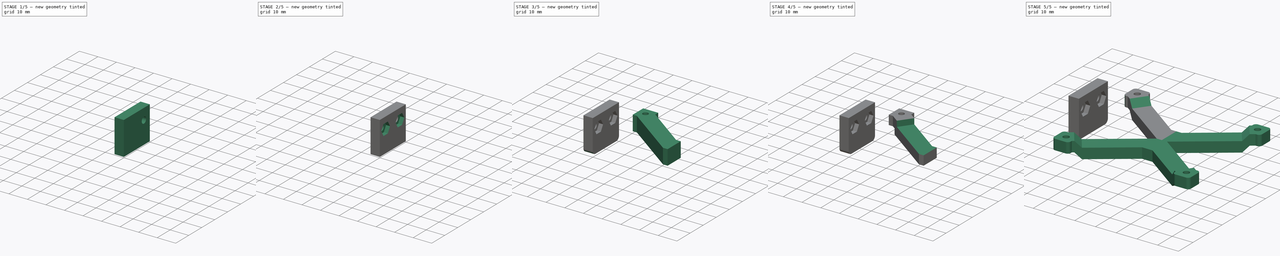
[diagram: build sequence overview — one tinted view per stage of 5, left to right]
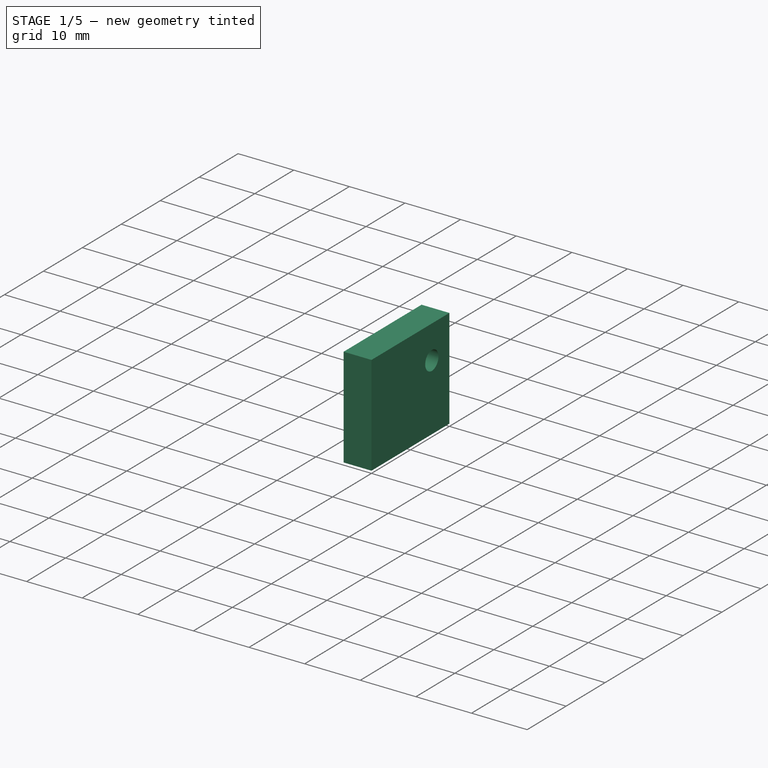
[diagram: stage 1 of 5 — iso view after this stage's code; geometry added in this stage tinted green]
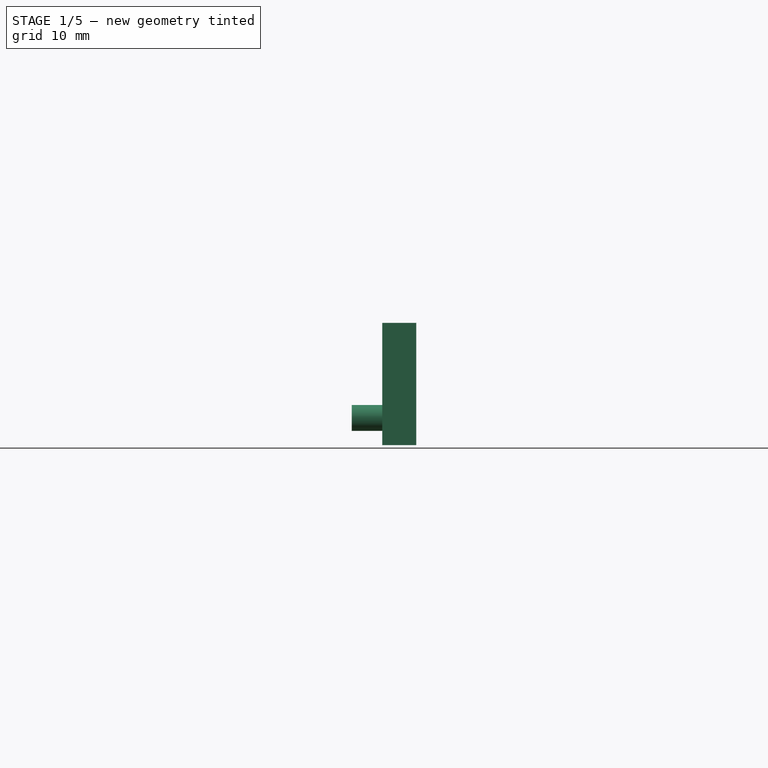
[diagram: stage 1 of 5 — front view after this stage's code; geometry added in this stage tinted green]
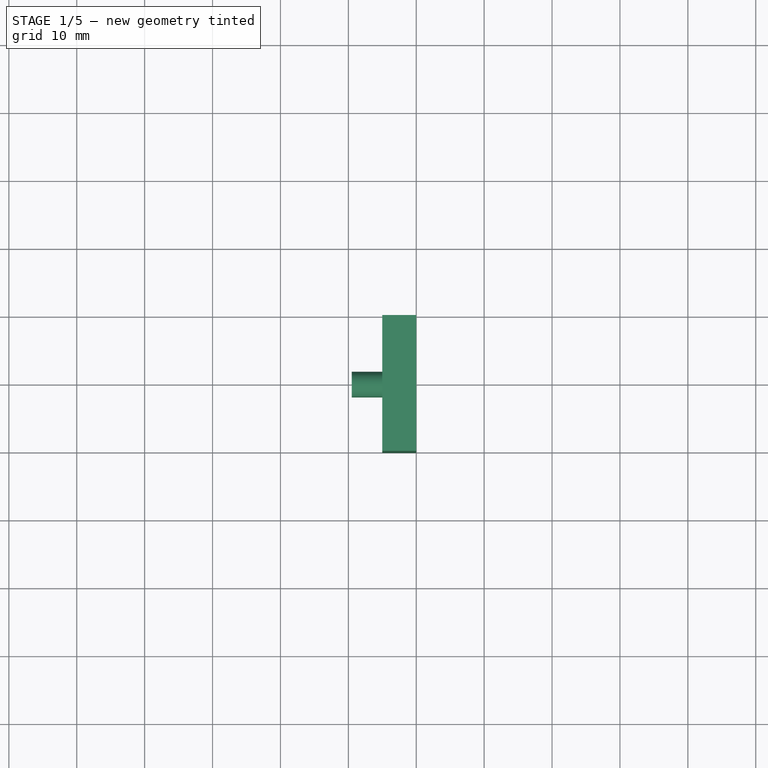
[diagram: stage 1 of 5 — top view after this stage's code; geometry added in this stage tinted green]
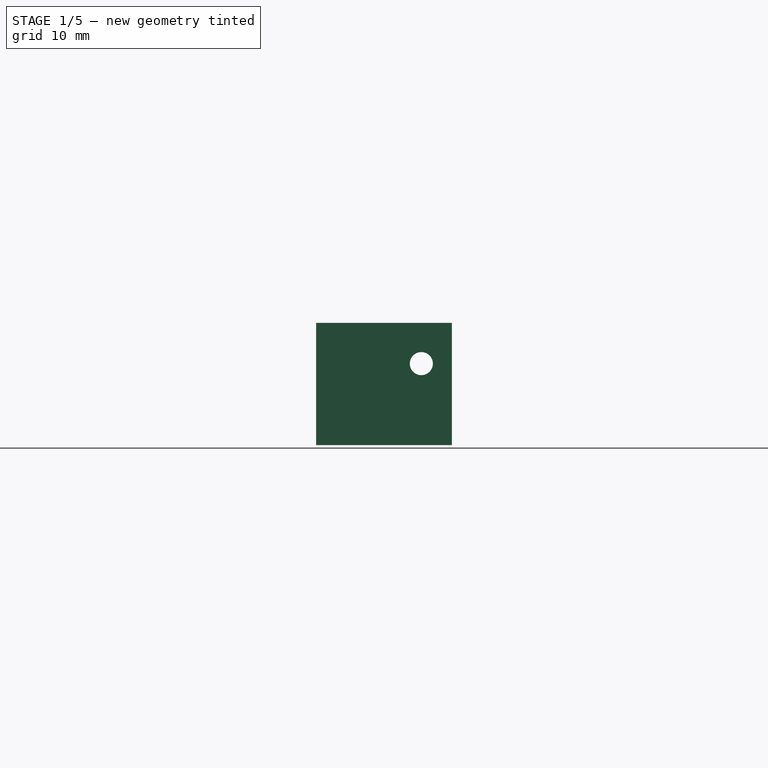
[diagram: stage 1 of 5 — right view after this stage's code; geometry added in this stage tinted green]
FCSTD DOCUMENT  (FreeCAD 0.19R24276 (Git))
Label: hat_holder_bot
License: All rights reserved
LicenseURL: http://en.wikipedia.org/wiki/All_rights_reserved
objects: Sketcher::SketchObject×9, PartDesign::Pocket×4, PartDesign::Pad×3, PartDesign::Mirrored×3, PartDesign::Hole×2, PartDesign::Chamfer×2, PartDesign::Fillet×2, PartDesign::Body×2, PartDesign::MultiTransform×1
note: 41 computed .brp shape members not serialized (recipe doc carries the construction recipe); baked Part::Feature solids carry a one-line shape summary decoded from their .brp

FEATURE [Sketcher::SketchObject] Sketch  label="conn_base_sk"
  FullyConstrained = true
  MapMode = 5
  Placement = pos=(0,0,0) rot=(0.57735,0.57735,0.57735;2.0944rad)
  Support = -> [YZ_Plane]
  sketch-geometry (4):
    g0: LineSegment StartX=-10 StartY=0 StartZ=0 EndX=10 EndY=0 EndZ=0
    g1: LineSegment StartX=10 StartY=0 StartZ=0 EndX=10 EndY=18 EndZ=0
    g2: LineSegment StartX=10 StartY=18 StartZ=0 EndX=-10 EndY=18 EndZ=0
    g3: LineSegment StartX=-10 StartY=18 StartZ=0 EndX=-10 EndY=0 EndZ=0
  constraints (11):
    c: Coincident(g0,g1)
    c: Coincident(g1,g2)
    c: Coincident(g2,g3)
    c: Coincident(g3,g0)
    c: Horizontal(g2)
    c: Vertical(g1)
    c: Vertical(g3)
    c: PointOnObject(g0,g-1)
    c: Symmetric(g0,g0,g-2)
    c: Distance(g1) = 18
    c: Distance(g2) = 20
FEATURE [PartDesign::Pad] Pad  label="conn_base"
  Direction = (1,1,1)
  Length = 5
  Length2 = 100
  Placement = pos=(0,0,0) rot=(0.57735,0.57735,0.57735;2.0944rad)
  Profile = -> Sketch
  Reversed = true
  Type = 0
FEATURE [Sketcher::SketchObject] Sketch001  label="dowel_pin_sk"
  FullyConstrained = true
  MapMode = 5
  Placement = pos=(-5,1.1e-15,-1.1e-15) rot=(0.57735,0.57735,-0.57735;4.18879rad)
  Support = -> [Pad]
  sketch-geometry (1):
    g0: Circle CenterX=0 CenterY=-4 CenterZ=0 NormalX=0 NormalY=0 NormalZ=1 AngleXU=0 Radius=1.9
  constraints (3):
    c: PointOnObject(g0,g-2)
    c: DistanceY(g0,g-1) = 4
    c: Radius(g0) = 1.9
FEATURE [PartDesign::Pad] Pad001  label="dowel_pin"
  BaseFeature = -> Pad
  Direction = (1,1,1)
  Length = 4.5
  Length2 = 100
  Placement = pos=(0,0,0) rot=(0.57735,0.57735,0.57735;2.0944rad)
  Profile = -> Sketch001
  Type = 0
FEATURE [Sketcher::SketchObject] Sketch002  label="M3_hole_sk"
  ExternalGeometry = -> [Pad001]
  FullyConstrained = true
  MapMode = 5
  Placement = pos=(-5,1.1e-15,-1.1e-15) rot=(0.57735,0.57735,-0.57735;4.18879rad)
  Support = -> [Pad001]
  sketch-geometry (1):
    g0: Circle CenterX=5.5 CenterY=-12 CenterZ=0 NormalX=0 NormalY=0 NormalZ=1 AngleXU=0 Radius=1
  constraints (3):
    c: DistanceY(g0,g-3) = 8
    c: DistanceX(g-1,g0) = 5.5
    c: Radius(g0) = 1
FEATURE [PartDesign::Hole] Hole  label="M3_hole"
  BaseFeature = -> Pad001
  Depth = 25
  DepthType = 1
  Diameter = 3.4
  DrillForDepth = false
  DrillPoint = 1
  DrillPointAngle = 118
  HoleCutCountersinkAngle = 90
  HoleCutCustomValues = false
  HoleCutDepth = 0
  HoleCutDiameter = 6.1
  HoleCutType = 0
  ModelActualThread = false
  Placement = pos=(0,0,0) rot=(0.57735,0.57735,0.57735;2.0944rad)
  Profile = -> Sketch002
  Tapered = false
  TaperedAngle = 90
  ThreadAngle = 0
  ThreadClass = 0
  ThreadCutOffInner = 0
  ThreadCutOffOuter = 0
  ThreadDirection = 0
  ThreadFit = 0
  ThreadPitch = 0
  ThreadSize = 9
  ThreadType = 1
  Threaded = false
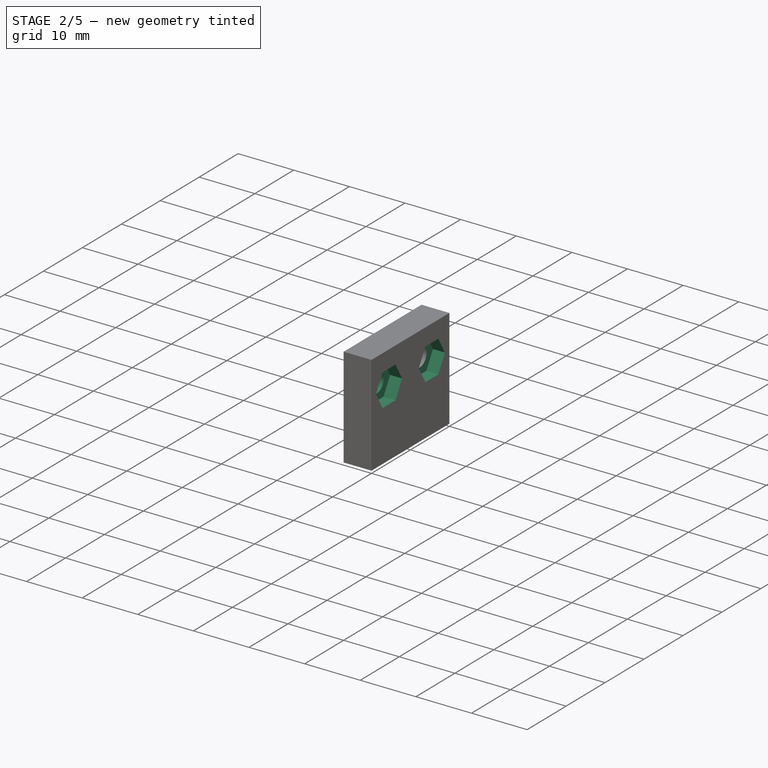
[diagram: stage 2 of 5 — iso view after this stage's code; geometry added in this stage tinted green]
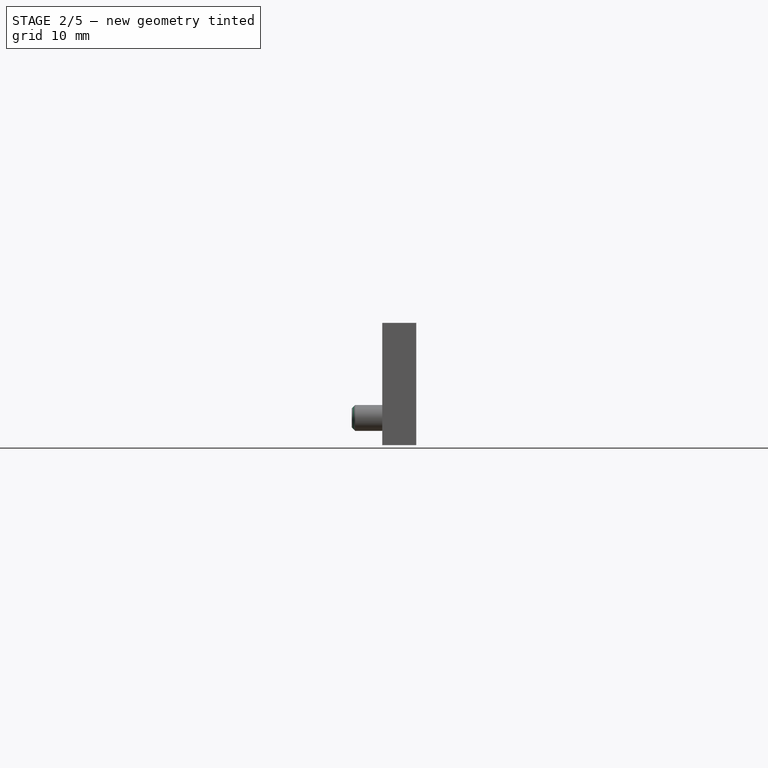
[diagram: stage 2 of 5 — front view after this stage's code; geometry added in this stage tinted green]
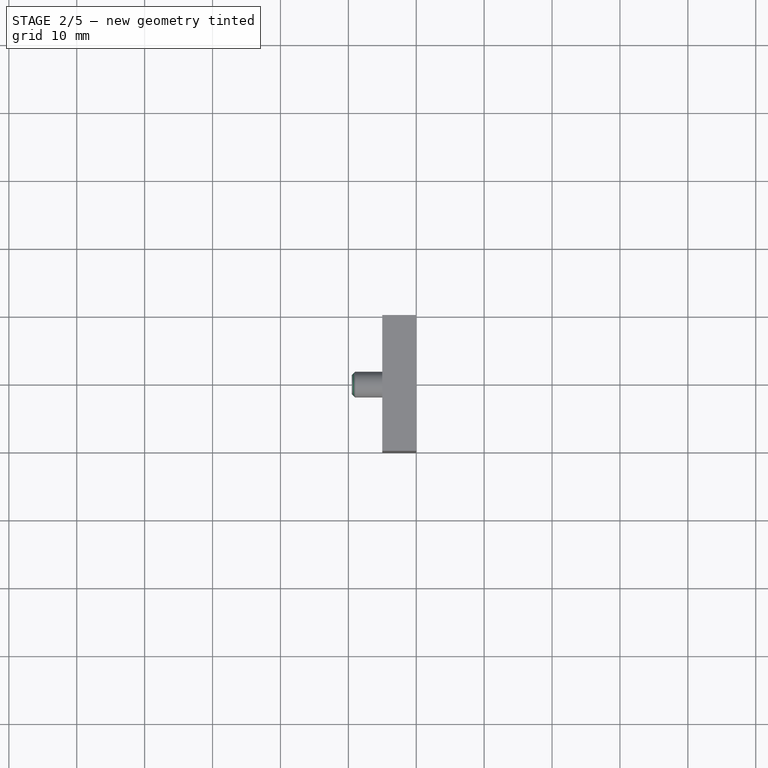
[diagram: stage 2 of 5 — top view after this stage's code; geometry added in this stage tinted green]
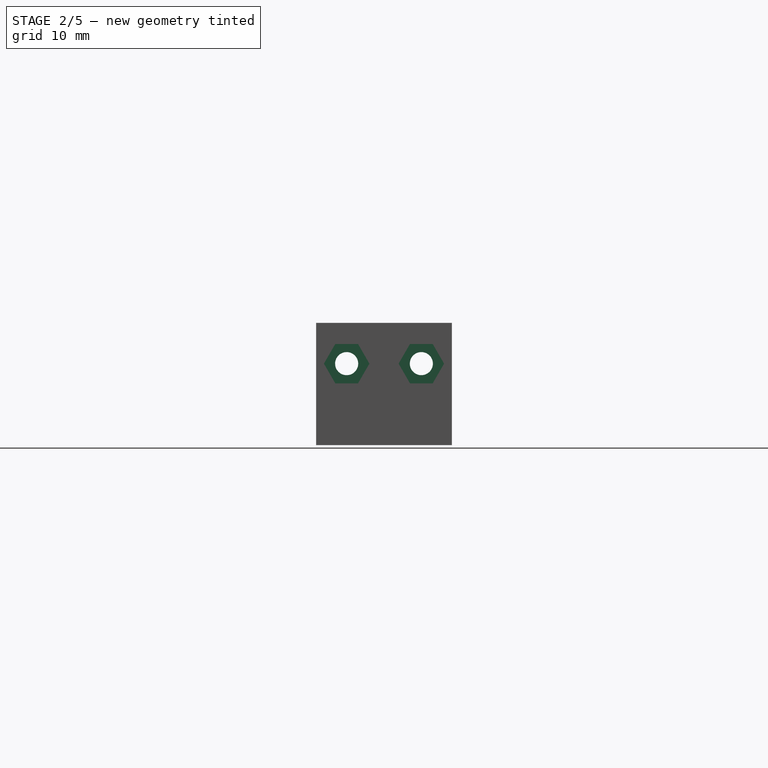
[diagram: stage 2 of 5 — right view after this stage's code; geometry added in this stage tinted green]
FEATURE [Sketcher::SketchObject] Sketch003  label="M3_hex_sk"
  ExternalGeometry = -> [Hole]
  FullyConstrained = true
  MapMode = 5
  Placement = pos=(0,0,0) rot=(0.57735,0.57735,0.57735;2.0944rad)
  Support = -> [Hole]
  sketch-geometry (7):
    g0: LineSegment StartX=2.15137 StartY=12 StartZ=0 EndX=3.82568 EndY=9.1 EndZ=0
    g1: LineSegment StartX=3.82568 StartY=9.1 StartZ=0 EndX=7.17432 EndY=9.1 EndZ=0
    g2: LineSegment StartX=7.17432 StartY=9.1 StartZ=0 EndX=8.84863 EndY=12 EndZ=0
    g3: LineSegment StartX=8.84863 StartY=12 StartZ=0 EndX=7.17432 EndY=14.9 EndZ=0
    g4: LineSegment StartX=7.17432 StartY=14.9 StartZ=0 EndX=3.82568 EndY=14.9 EndZ=0
    g5: LineSegment StartX=3.82568 StartY=14.9 StartZ=0 EndX=2.15137 EndY=12 EndZ=0
    g6: Circle CenterX=5.5 CenterY=12 CenterZ=0 NormalX=0 NormalY=0 NormalZ=1 AngleXU=0 Radius=3.34863
  constraints (16):
    c: Coincident(g0,g1)
    c: Coincident(g1,g2)
    c: Coincident(g2,g3)
    c: Coincident(g3,g4)
    c: Coincident(g4,g5)
    c: Coincident(g5,g0)
    c: Equal(g0, g1-g5) x5
    c: PointOnObject(g0,g6)
    c: PointOnObject(g1,g6)
    c: PointOnObject(g2,g6)
    c: PointOnObject(g3,g6)
    c: PointOnObject(g4,g6)
    c: PointOnObject(g5,g6)
    c: Coincident(g6,g-3)
    c: Horizontal(g0,g2)
    c: Distance(g4,g0) = 5.8
FEATURE [PartDesign::Pocket] Pocket  label="M3_hex"
  BaseFeature = -> Hole
  Length = 2.15
  Length2 = 100
  Placement = pos=(0,0,0) rot=(0.57735,0.57735,0.57735;2.0944rad)
  Profile = -> Sketch003
  Type = 0
FEATURE [PartDesign::Mirrored] Mirrored  label="dual_M3"
  BaseFeature = -> Pocket
  MirrorPlane = -> XZ_Plane
  Originals = -> [Hole,Pocket]
  Placement = pos=(0,0,0) rot=(0.57735,0.57735,0.57735;2.0944rad)
FEATURE [PartDesign::Chamfer] Chamfer  label="dowel_pin_chamfer"
  Angle = 45
  Base = -> Mirrored [Face24]
  BaseFeature = -> Mirrored
  ChamferType = 0
  FlipDirection = false
  Placement = pos=(0,0,0) rot=(0.57735,0.57735,0.57735;2.0944rad)
  Size = 0.5
  Size2 = 1
  SupportTransform = false
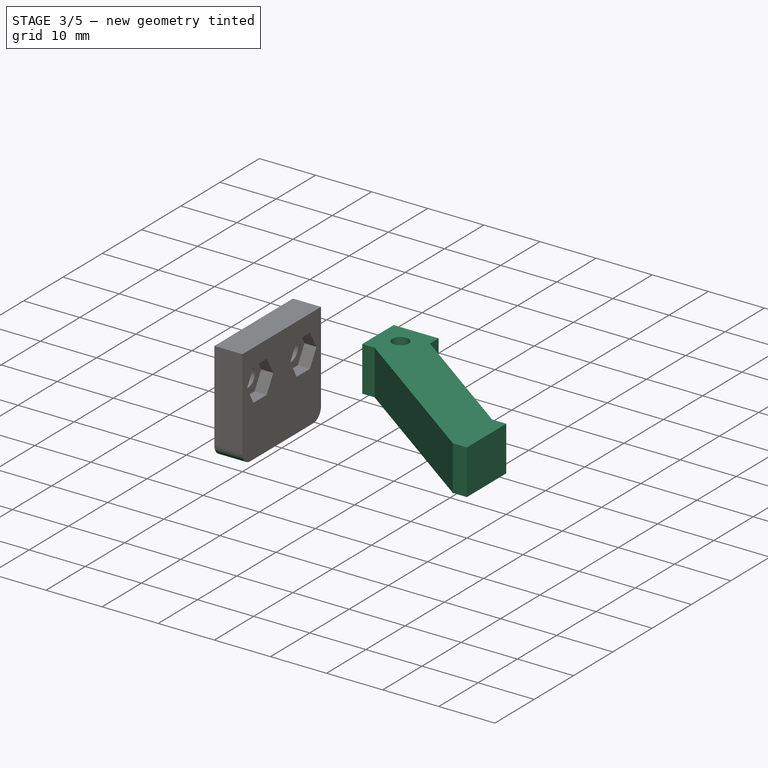
[diagram: stage 3 of 5 — iso view after this stage's code; geometry added in this stage tinted green]
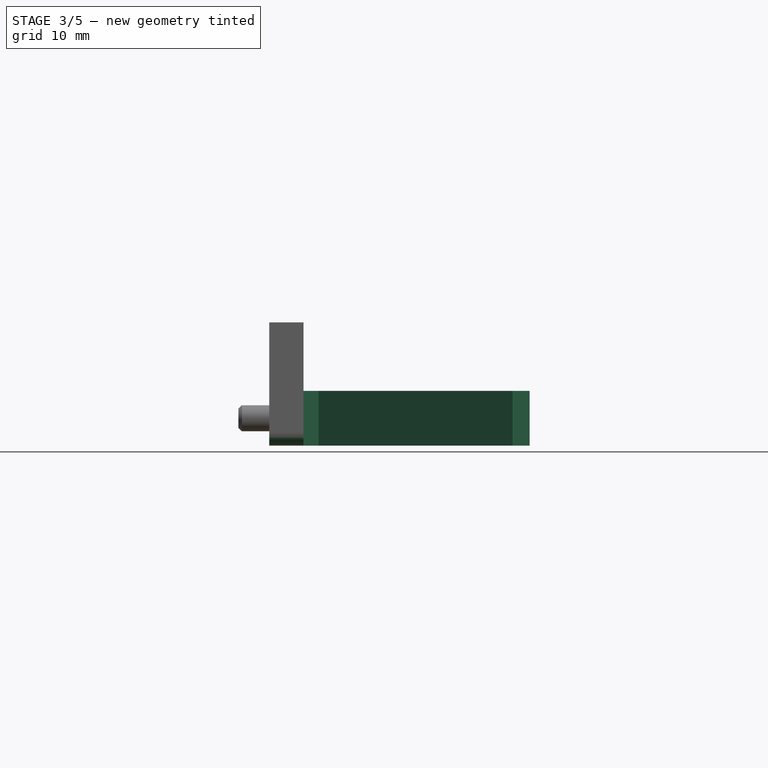
[diagram: stage 3 of 5 — front view after this stage's code; geometry added in this stage tinted green]
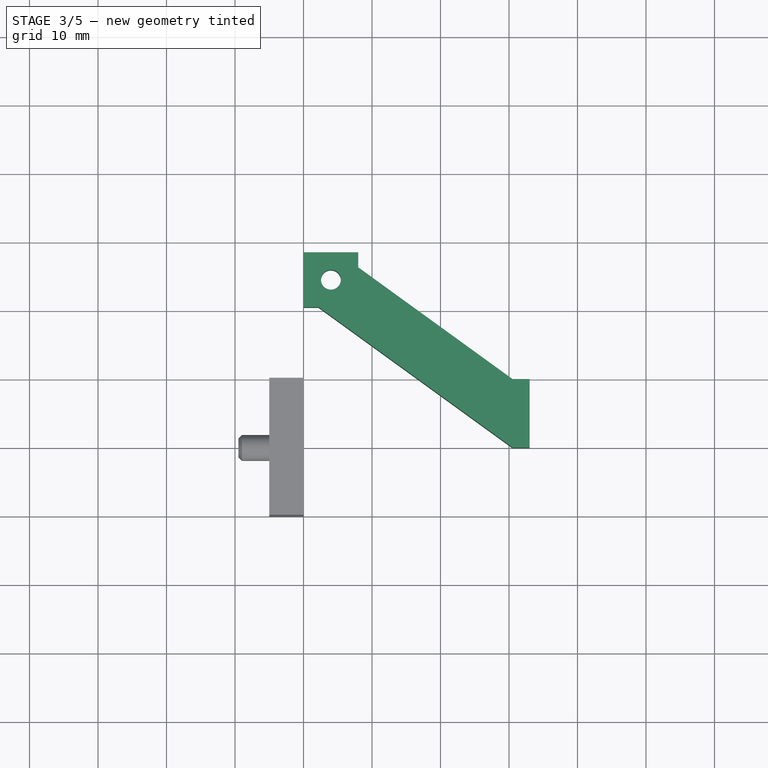
[diagram: stage 3 of 5 — top view after this stage's code; geometry added in this stage tinted green]
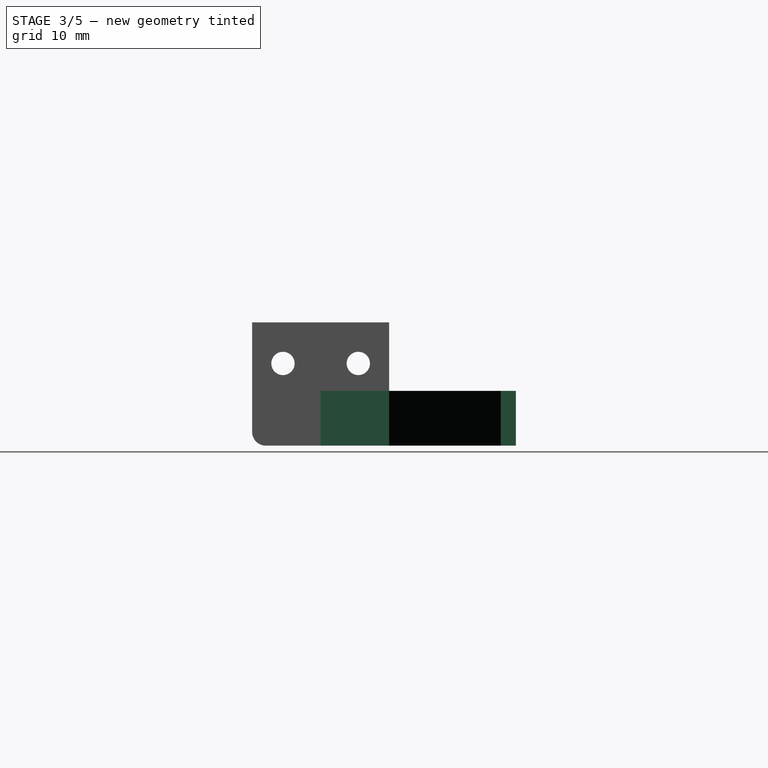
[diagram: stage 3 of 5 — right view after this stage's code; geometry added in this stage tinted green]
FEATURE [Sketcher::SketchObject] Sketch004  label="quad_holder_sk"
  FullyConstrained = true
  MapMode = 5
  Support = -> [XY_Plane001]
  sketch-geometry (9):
    g0: LineSegment StartX=0 StartY=28.5 StartZ=0 EndX=8 EndY=28.5 EndZ=0
    g1: LineSegment StartX=30.5 StartY=10 StartZ=0 EndX=33 EndY=10 EndZ=0
    g2: LineSegment StartX=33 StartY=0 StartZ=0 EndX=30.5 EndY=0 EndZ=0
    g3: LineSegment StartX=0 StartY=28.5 StartZ=0 EndX=0 EndY=20.5 EndZ=0
    g4: LineSegment StartX=8 StartY=28.5 StartZ=0 EndX=8 EndY=26.2991 EndZ=0
    g5: LineSegment StartX=0 StartY=20.5 StartZ=0 EndX=2.2009 EndY=20.5 EndZ=0
    g6: LineSegment StartX=8 StartY=26.2991 StartZ=0 EndX=30.5 EndY=10 EndZ=0
    g7: LineSegment StartX=2.2009 StartY=20.5 StartZ=0 EndX=30.5 EndY=0 EndZ=0
    g8: LineSegment StartX=33 StartY=10 StartZ=0 EndX=33 EndY=0 EndZ=0
  constraints (27):
    c: PointOnObject(g0,g-2)
    c: Horizontal(g0)
    c: Horizontal(g1)
    c: PointOnObject(g2,g-1)
    c: Distance(g0) = 8
    c: Distance(g1) = 2.5
    c: Coincident(g3,g0)
    c: PointOnObject(g3,g-2)
    c: Equal(g3,g0)
    c: PointOnObject(g2,g-1)
    c: Coincident(g4,g0)
    c: Vertical(g4)
    c: Coincident(g5,g3)
    c: Horizontal(g5)
    c: Coincident(g6,g4)
    c: Coincident(g6,g1)
    c: Coincident(g7,g5)
    c: Coincident(g7,g2)
    c: Parallel(g7,g6)
    c: Equal(g4,g5)
    c: Coincident(g8,g1)
    c: Coincident(g8,g2)
    c: Vertical(g8)
    c: Vertical(g1,g2)
    c: Distance(g8) = 10
    c: DistanceY(g-1,g0) = 28.5
    c: DistanceX(g-1,g2) = 33
FEATURE [PartDesign::Pad] Pad002  label="quad_holder"
  Direction = (1,1,1)
  Length = 8
  Length2 = 100
  Profile = -> Sketch004
  Type = 0
FEATURE [Sketcher::SketchObject] Sketch005  label="M2on5_hole_sk"
  FullyConstrained = true
  MapMode = 5
  Placement = pos=(0,0,8) rot=(0,0,1;0rad)
  Support = -> [Pad002]
  sketch-geometry (1):
    g0: Circle CenterX=4 CenterY=24.5 CenterZ=0 NormalX=0 NormalY=0 NormalZ=1 AngleXU=0 Radius=1
  constraints (3):
    c: DistanceY(g-1,g0) = 24.5
    c: DistanceX(g-1,g0) = 4
    c: Radius(g0) = 1
FEATURE [PartDesign::Hole] Hole001  label="M2on5_hole"
  BaseFeature = -> Pad002
  Depth = 25
  DepthType = 1
  Diameter = 2.9
  DrillForDepth = false
  DrillPoint = 1
  DrillPointAngle = 118
  HoleCutCountersinkAngle = 90
  HoleCutCustomValues = false
  HoleCutDepth = 0
  HoleCutDiameter = 6.1
  HoleCutType = 0
  ModelActualThread = false
  Profile = -> Sketch005
  Tapered = false
  TaperedAngle = 90
  ThreadAngle = 0
  ThreadClass = 0
  ThreadCutOffInner = 0
  ThreadCutOffOuter = 0
  ThreadDirection = 0
  ThreadFit = 0
  ThreadPitch = 0
  ThreadSize = 8
  ThreadType = 1
  Threaded = false
FEATURE [PartDesign::Body] Body001  label="hat_holder"
  Group = -> [Sketch004,Pad002,Sketch005,Hole001,Sketch006,Pocket001,Pocket002,Pocket003,Chamfer001,Fillet,MultiTransform001,Mirrored003,Mirrored004,Sketch007,Sketch008]
  Origin = -> Origin001
  Placement = pos=(-35.5,0,18) rot=(0,0,1;0rad)
  Tip = -> MultiTransform001
FEATURE [PartDesign::Fillet] Fillet001
  Base = -> Chamfer [Edge13,Edge12]
  BaseFeature = -> Chamfer
  Placement = pos=(0,0,0) rot=(0.57735,0.57735,0.57735;2.0944rad)
  Radius = 2
  SupportTransform = false
FEATURE [PartDesign::Body] Body  label="branch_connector"
  Group = -> [Sketch,Pad,Sketch001,Pad001,Sketch002,Hole,Sketch003,Pocket,Mirrored,Chamfer,Fillet001]
  Origin = -> Origin
  Tip = -> Fillet001
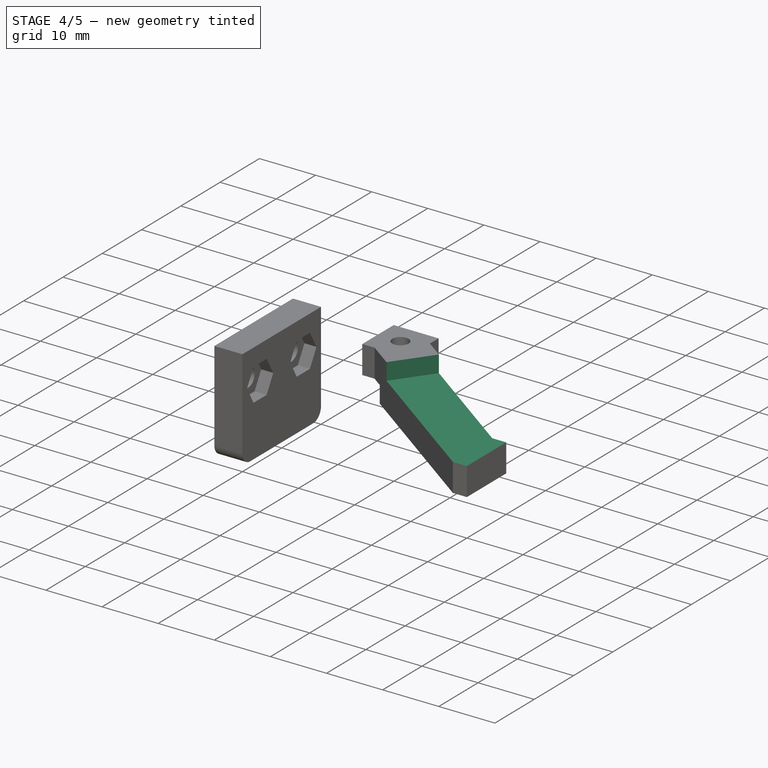
[diagram: stage 4 of 5 — iso view after this stage's code; geometry added in this stage tinted green]
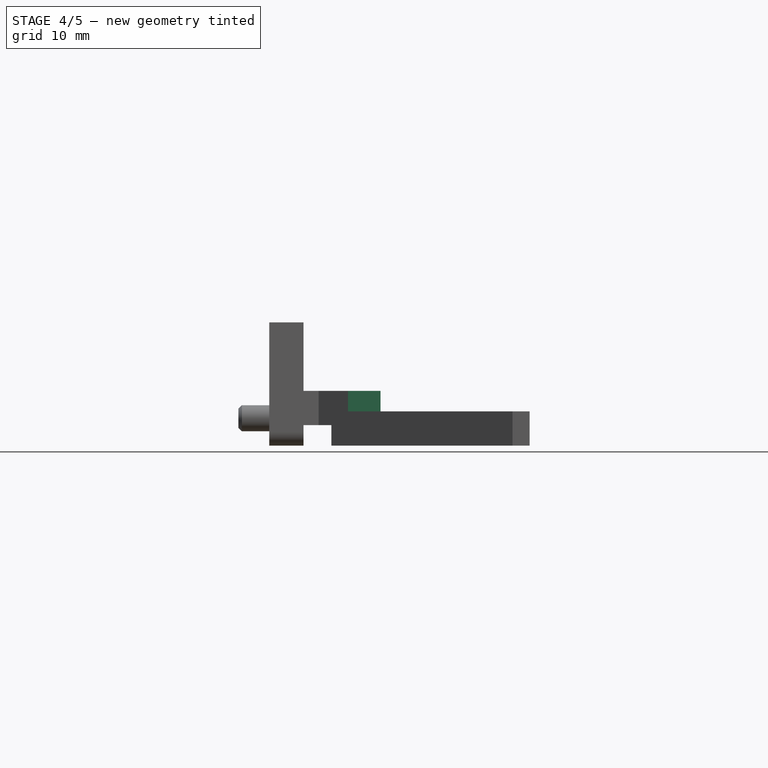
[diagram: stage 4 of 5 — front view after this stage's code; geometry added in this stage tinted green]
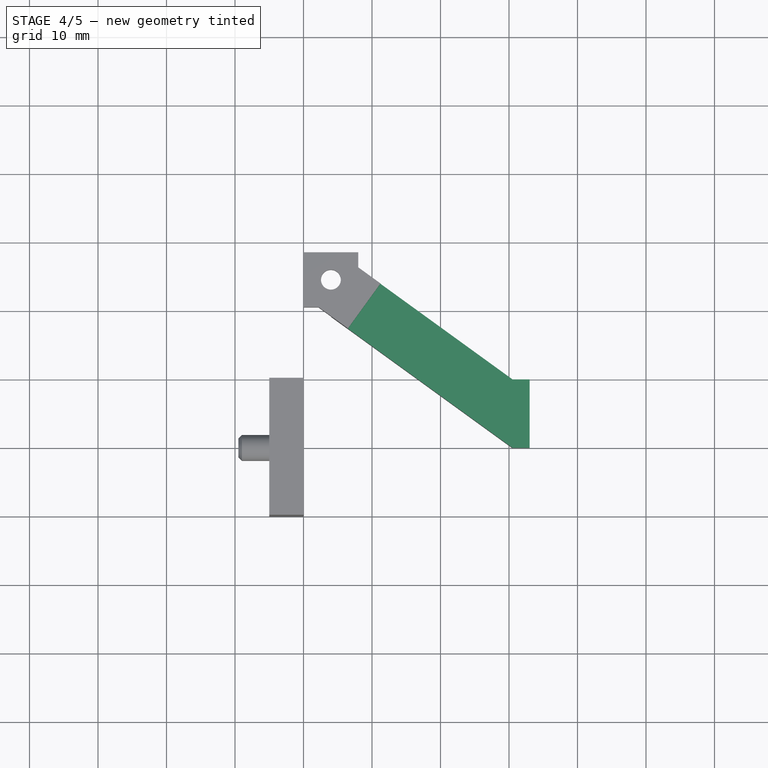
[diagram: stage 4 of 5 — top view after this stage's code; geometry added in this stage tinted green]
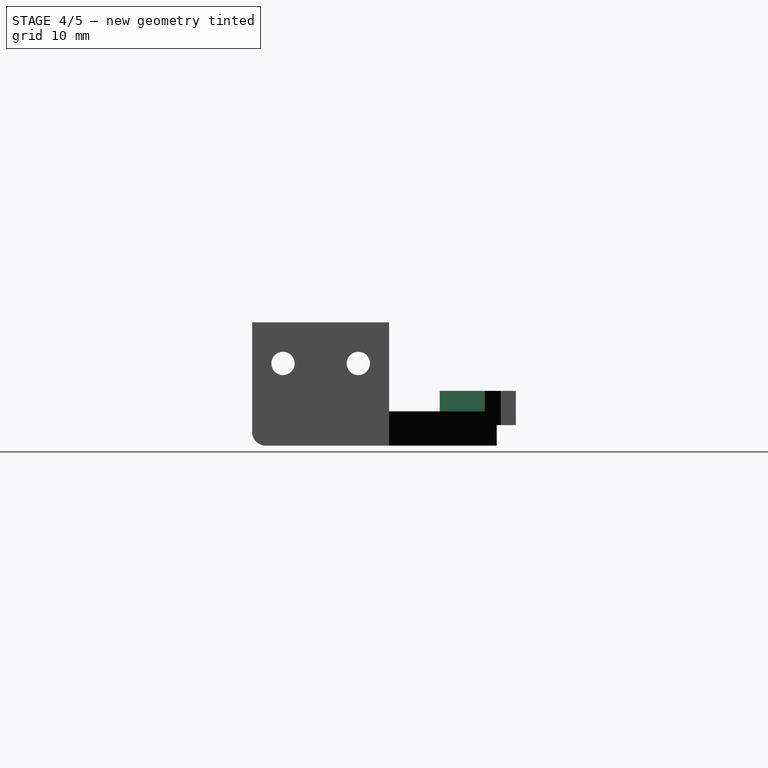
[diagram: stage 4 of 5 — right view after this stage's code; geometry added in this stage tinted green]
FEATURE [Sketcher::SketchObject] Sketch006  label="M2on5_hex_sk"
  ExternalGeometry = -> [Hole001]
  FullyConstrained = true
  MapMode = 5
  Placement = pos=(0,0,0) rot=(1,0,0;3.14159rad)
  Support = -> [Hole001]
  sketch-geometry (7):
    g0: LineSegment StartX=5.51554 StartY=-21.875 StartZ=0 EndX=2.48446 EndY=-21.875 EndZ=0
    g1: LineSegment StartX=2.48446 StartY=-21.875 StartZ=0 EndX=0.968911 EndY=-24.5 EndZ=0
    g2: LineSegment StartX=0.968911 StartY=-24.5 StartZ=0 EndX=2.48446 EndY=-27.125 EndZ=0
    g3: LineSegment StartX=2.48446 StartY=-27.125 StartZ=0 EndX=5.51554 EndY=-27.125 EndZ=0
    g4: LineSegment StartX=5.51554 StartY=-27.125 StartZ=0 EndX=7.03109 EndY=-24.5 EndZ=0
    g5: LineSegment StartX=7.03109 StartY=-24.5 StartZ=0 EndX=5.51554 EndY=-21.875 EndZ=0
    g6: Circle CenterX=4 CenterY=-24.5 CenterZ=0 NormalX=0 NormalY=0 NormalZ=1 AngleXU=0 Radius=3.03109
  constraints (16):
    c: Coincident(g0,g1)
    c: Coincident(g1,g2)
    c: Coincident(g2,g3)
    c: Coincident(g3,g4)
    c: Coincident(g4,g5)
    c: Coincident(g5,g0)
    c: Equal(g0, g1-g5) x5
    c: PointOnObject(g0,g6)
    c: PointOnObject(g1,g6)
    c: PointOnObject(g2,g6)
    c: PointOnObject(g3,g6)
    c: PointOnObject(g4,g6)
    c: PointOnObject(g5,g6)
    c: Horizontal(g4,g1)
    c: DistanceY(g2,g0) = 5.25
    c: Coincident(g6,g-3)
FEATURE [PartDesign::Pocket] Pocket001  label="M2on5_hex"
  BaseFeature = -> Hole001
  Length = 4.75
  Length2 = 100
  Profile = -> Sketch006
  Type = 0
FEATURE [PartDesign::Mirrored] Mirrored003
  MirrorPlane = -> Pocket001 [Face11]
FEATURE [PartDesign::Mirrored] Mirrored004
  MirrorPlane = -> XZ_Plane001
FEATURE [Sketcher::SketchObject] Sketch007  label="end_trimmer_sk"
  ExternalGeometry = -> [Pocket001]
  FullyConstrained = true
  MapMode = 5
  Placement = pos=(0,0,0) rot=(1,0,0;3.14159rad)
  Support = -> [Pocket001]
  sketch-geometry (5):
    g0: LineSegment StartX=0 StartY=-28.5 StartZ=0 EndX=8 EndY=-28.5 EndZ=0
    g1: LineSegment StartX=0 StartY=-20.5 StartZ=0 EndX=0 EndY=-28.5 EndZ=0
    g2: LineSegment StartX=0 StartY=-20.5 StartZ=0 EndX=4.0589 EndY=-19.1541 EndZ=0
    g3: LineSegment StartX=4.0589 StartY=-19.1541 StartZ=0 EndX=8.80984 EndY=-25.7125 EndZ=0
    g4: LineSegment StartX=8.80984 StartY=-25.7125 StartZ=0 EndX=8 EndY=-28.5 EndZ=0
  constraints (12):
    c: Coincident(g1,g0)
    c: Coincident(g0,g-4)
    c: Coincident(g0,g-3)
    c: Coincident(g2,g1)
    c: PointOnObject(g2,g-5)
    c: Coincident(g3,g2)
    c: PointOnObject(g3,g-6)
    c: Coincident(g4,g3)
    c: Coincident(g4,g0)
    c: Perpendicular(g-6,g3)
    c: Distance(g3,g-6) = 1
    c: Coincident(g1,g-4)
FEATURE [PartDesign::Pocket] Pocket002  label="end_trimmer"
  BaseFeature = -> Pocket001
  Length = 3
  Length2 = 100
  Profile = -> Sketch007
  Type = 0
FEATURE [Sketcher::SketchObject] Sketch008  label="center_trimmer_sk"
  ExternalGeometry = -> [Pocket002]
  FullyConstrained = true
  MapMode = 5
  Placement = pos=(0,0,8) rot=(0,0,1;0rad)
  Support = -> [Pocket002]
  sketch-geometry (5):
    g0: LineSegment StartX=33 StartY=0 StartZ=0 EndX=33 EndY=10 EndZ=0
    g1: LineSegment StartX=33 StartY=10 StartZ=0 EndX=11.2394 EndY=23.9525 EndZ=0
    g2: LineSegment StartX=11.2394 StartY=23.9525 StartZ=0 EndX=6.48842 EndY=17.3941 EndZ=0
    g3: LineSegment StartX=6.48842 StartY=17.3941 StartZ=0 EndX=30.5 EndY=0 EndZ=0
    g4: LineSegment StartX=30.5 StartY=0 StartZ=0 EndX=33 EndY=0 EndZ=0
  constraints (12):
    c: Coincident(g0,g-5)
    c: Coincident(g0,g-5)
    c: Coincident(g1,g0)
    c: PointOnObject(g1,g-3)
    c: Coincident(g2,g1)
    c: PointOnObject(g2,g-4)
    c: Coincident(g3,g2)
    c: Coincident(g3,g-4)
    c: Coincident(g4,g3)
    c: Coincident(g4,g0)
    c: Perpendicular(g-4,g2)
    c: Distance(g2,g-3) = 4
FEATURE [PartDesign::Pocket] Pocket003  label="center_trimmer"
  BaseFeature = -> Pocket002
  Length = 3
  Length2 = 100
  Profile = -> Sketch008
  Type = 0
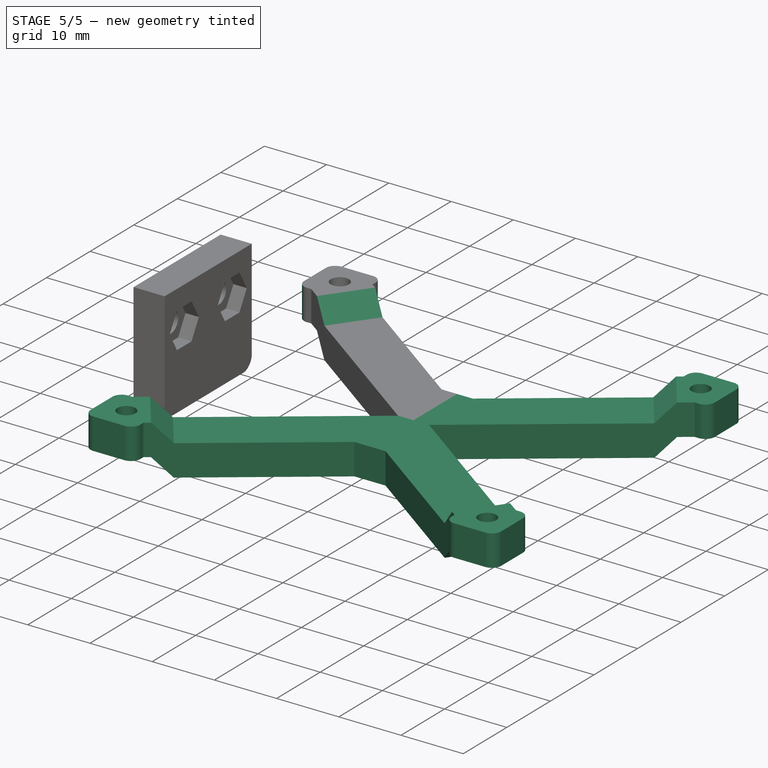
[diagram: stage 5 of 5 — iso view after this stage's code; geometry added in this stage tinted green]
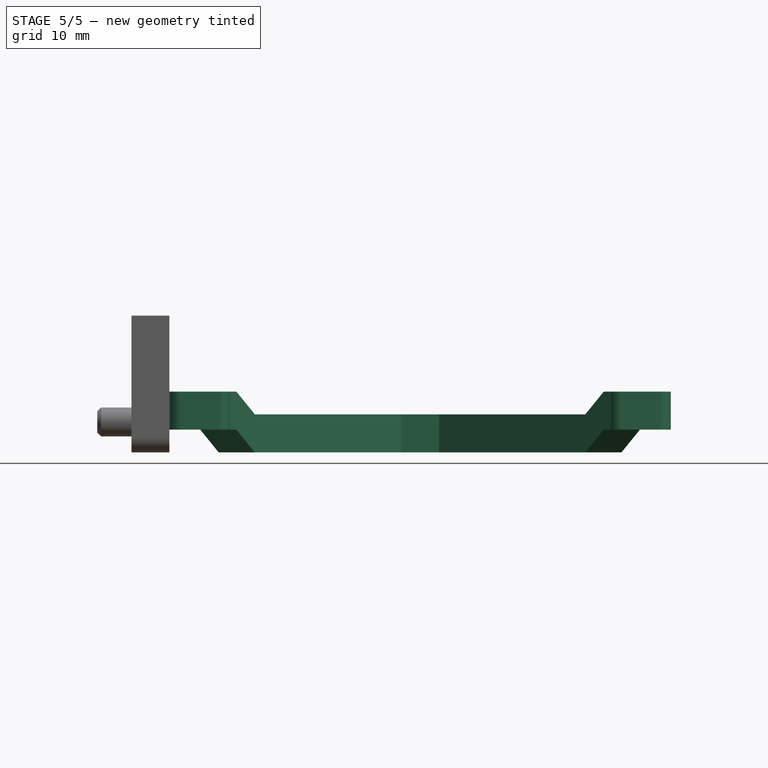
[diagram: stage 5 of 5 — front view after this stage's code; geometry added in this stage tinted green]
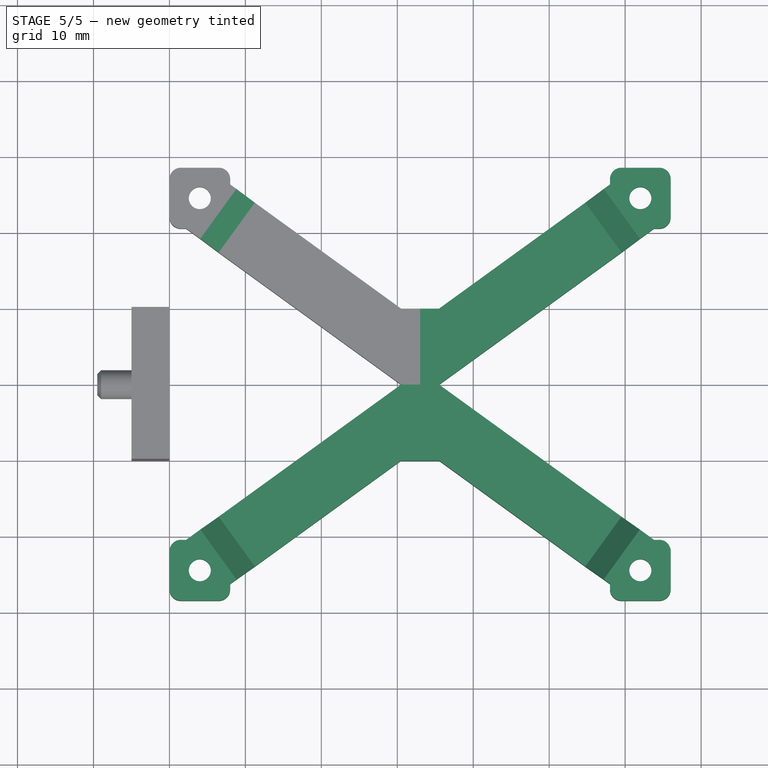
[diagram: stage 5 of 5 — top view after this stage's code; geometry added in this stage tinted green]
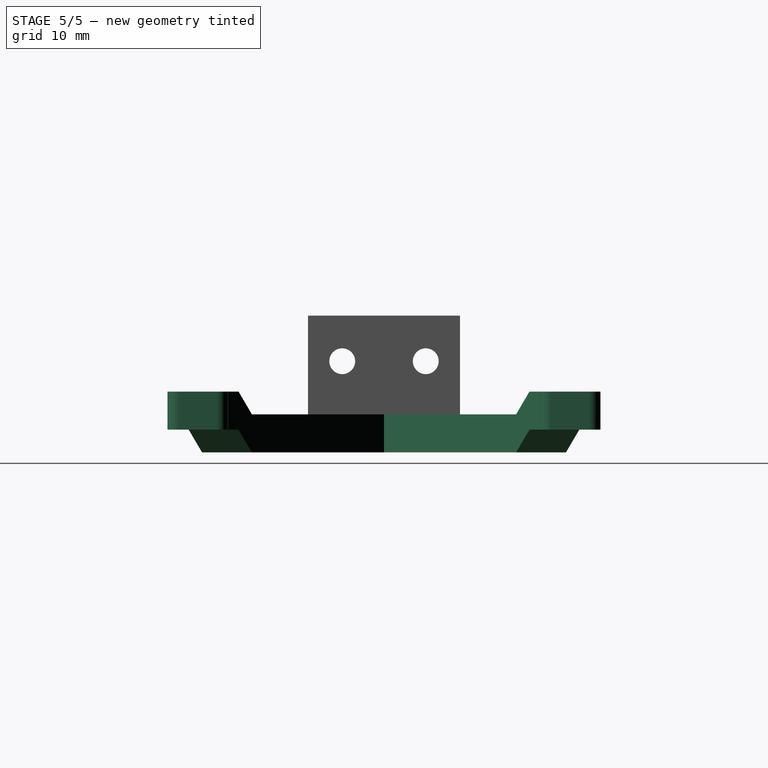
[diagram: stage 5 of 5 — right view after this stage's code; geometry added in this stage tinted green]
FEATURE [PartDesign::Chamfer] Chamfer001  label="slop_chamfer"
  Angle = 45
  Base = -> Pocket003 [Edge20,Edge32]
  BaseFeature = -> Pocket003
  ChamferType = 0
  FlipDirection = false
  Size = 2.99
  Size2 = 1
  SupportTransform = false
FEATURE [PartDesign::Fillet] Fillet  label="platform_fillet"
  Base = -> Chamfer001 [Edge33,Edge31,Edge21]
  BaseFeature = -> Chamfer001
  Radius = 1.5
  SupportTransform = false
FEATURE [PartDesign::MultiTransform] MultiTransform001  label="holder"
  BaseFeature = -> Fillet
  Originals = -> [Pad002,Hole001,Pocket001,Pocket002,Pocket003,Chamfer001,Fillet]
  Transformations = -> [Mirrored003,Mirrored004]
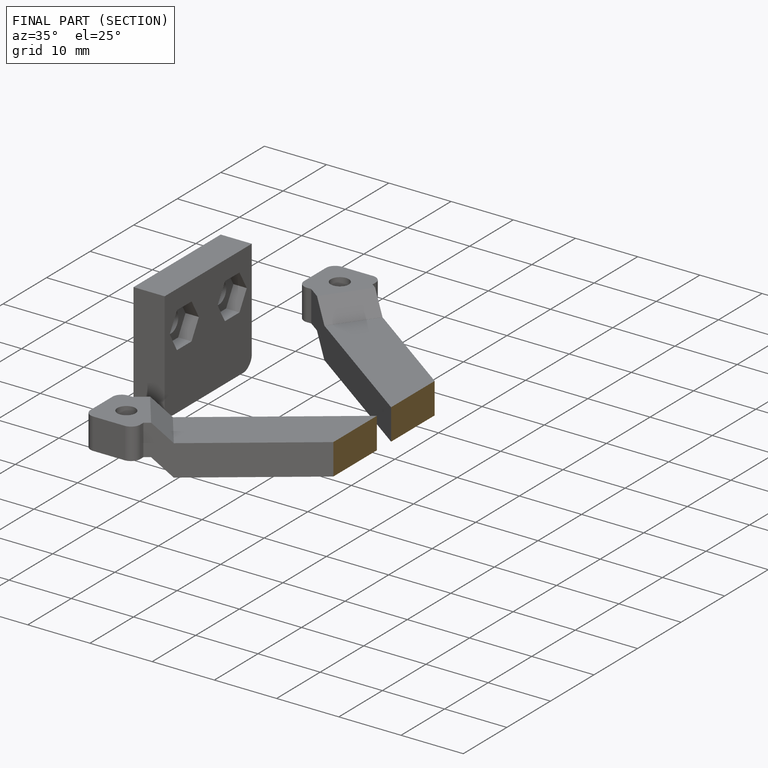
[diagram: finished part — half-section view (interior)]
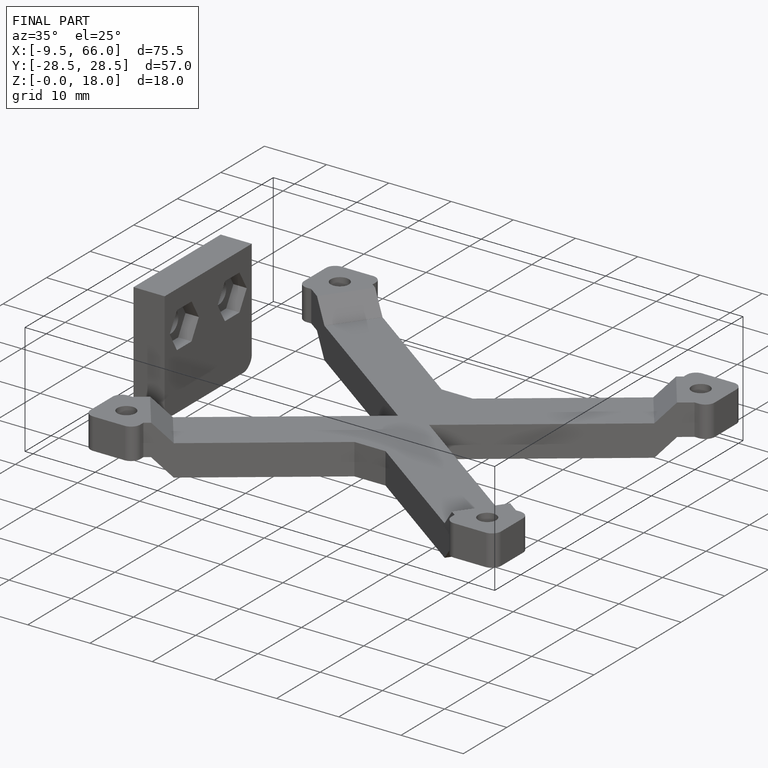
[diagram: finished part — iso view with bounding-box wireframe]
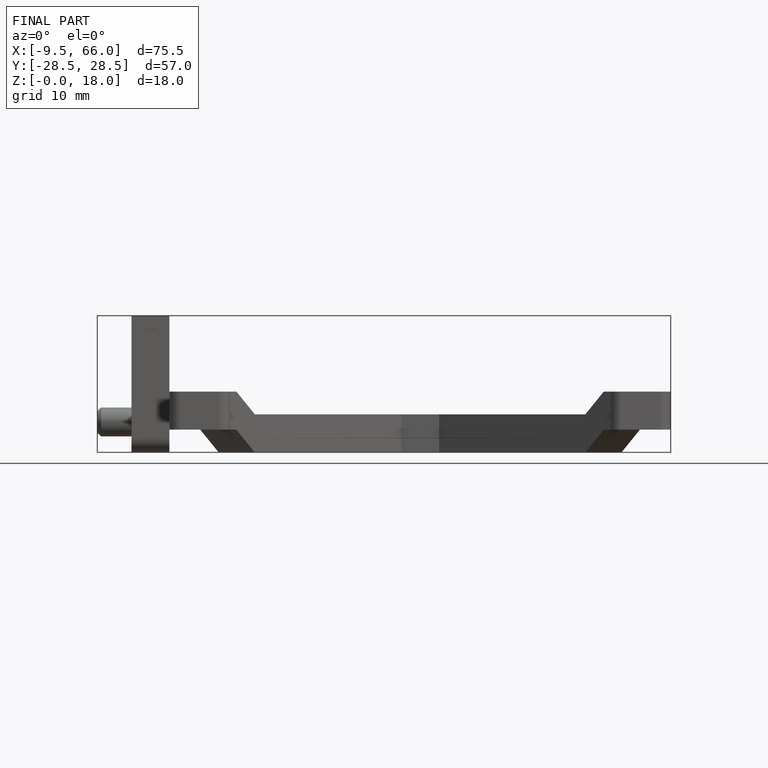
[diagram: finished part — front view with bounding-box wireframe]
